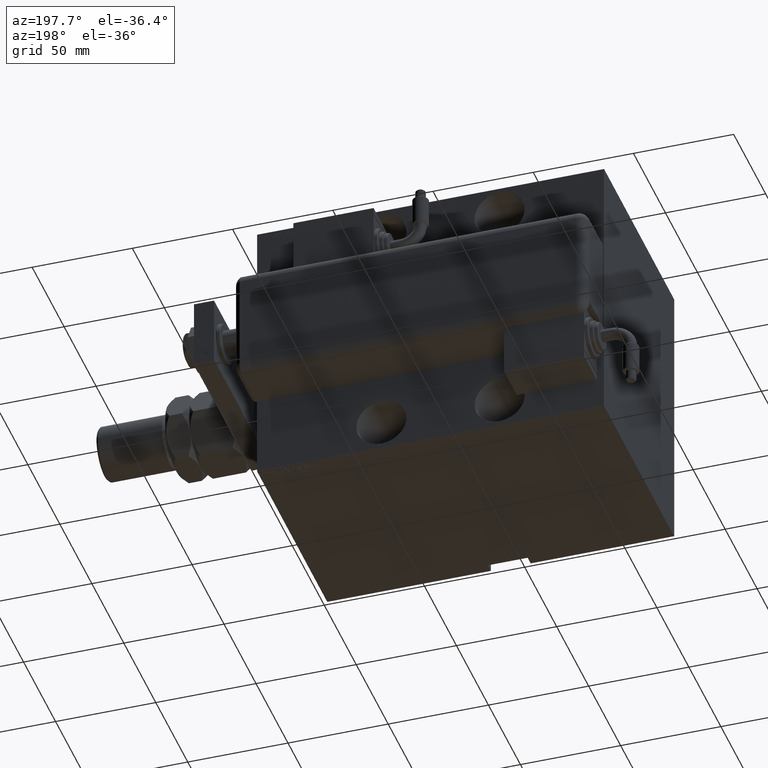
[diagram: clean part render]
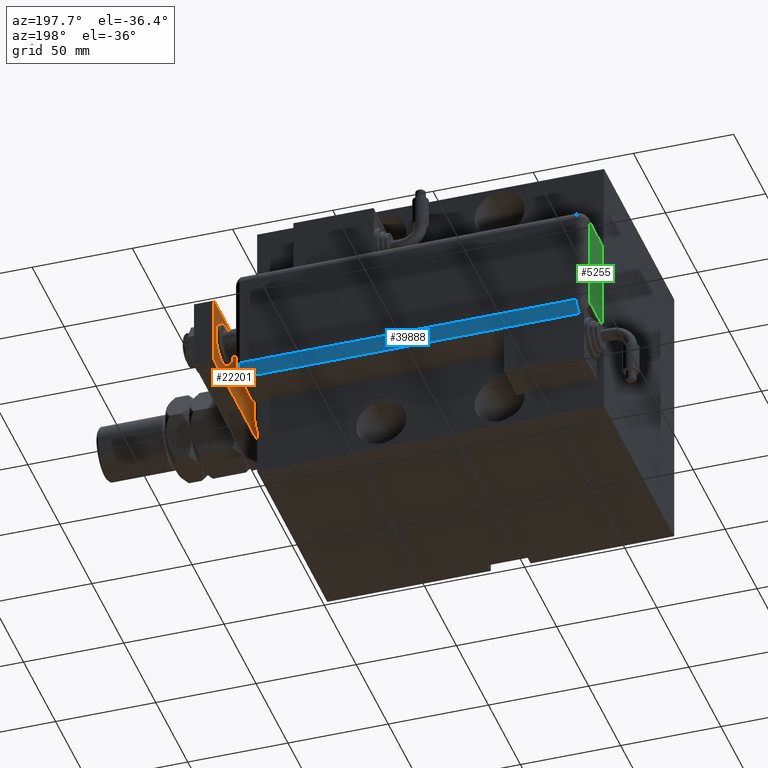
[diagram: same view with three faces highlighted in distinct colors, each labeled with its STEP entity id]
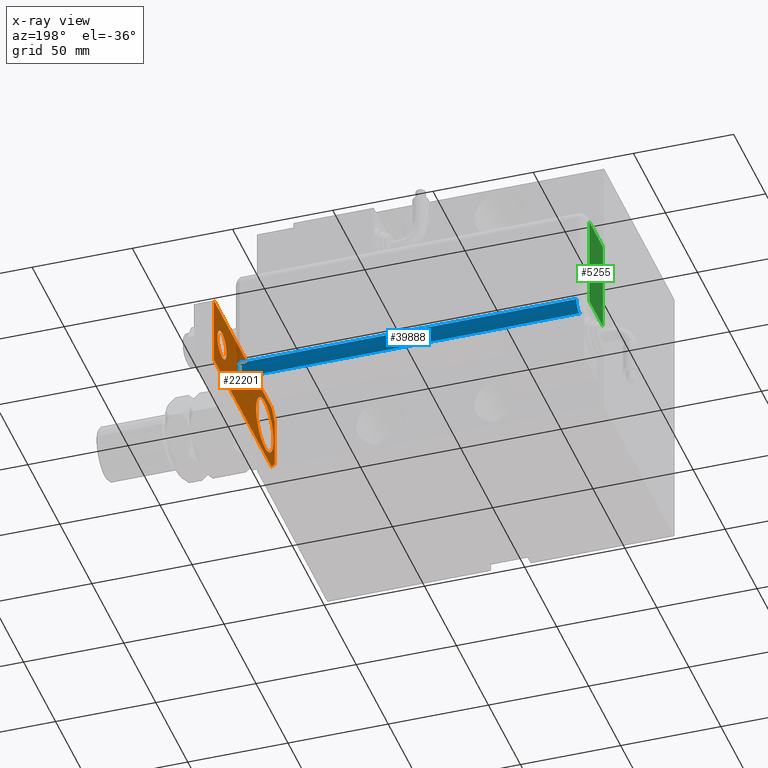
[diagram: x-ray of the same camera — body ghosted, the three highlighted faces saturated]
A machine part, auxiliary view with three faces highlighted in distinct colors.
The next image is the same camera in x-ray (body ghosted, the three faces saturated) — at least one of them is partly hidden behind the body in this view.
Their STEP definitions:

[orange] entity #22201 — the highlighted planar face has unit normal (-1, 0, 0).
#331 = CARTESIAN_POINT ( 'NONE',  ( -17.50000000000000355, 95.00000000000000000, 10.00000000000000000 ) ) ;
#392 = LINE ( 'NONE', #28969, #39743 ) ;
#554 = DIRECTION ( 'NONE',  ( 1.000000000000000000, 0.000000000000000000, 0.000000000000000000 ) ) ;
#656 = DIRECTION ( 'NONE',  ( 1.000000000000000000, 0.000000000000000000, 0.000000000000000000 ) ) ;
#1828 = CIRCLE ( 'NONE', #57028, 13.50000000000000000 ) ;
#2586 = AXIS2_PLACEMENT_3D ( 'NONE', #28294, #47479, #23563 ) ;
#2595 = AXIS2_PLACEMENT_3D ( 'NONE', #34373, #20849, #30588 ) ;
#2844 = EDGE_CURVE ( 'NONE', #3206, #47974, #30158, .T. ) ;
#3206 = VERTEX_POINT ( 'NONE', #43546 ) ;
#3302 = EDGE_LOOP ( 'NONE', ( #39298, #44119, #50104, #53549, #10943, #41584 ) ) ;
#4496 = EDGE_CURVE ( 'NONE', #57265, #6609, #9021, .T. ) ;
#4746 = EDGE_CURVE ( 'NONE', #9118, #19754, #43343, .T. ) ;
#4965 = CARTESIAN_POINT ( 'NONE',  ( -17.50000000000001066, 9.629649721936179265E-32, 10.00000000000000000 ) ) ;
#5163 = VECTOR ( 'NONE', #32081, 1000.000000000000000 ) ;
#6609 = VERTEX_POINT ( 'NONE', #22603 ) ;
#7145 = ORIENTED_EDGE ( 'NONE', *, *, #4746, .F. ) ;
#7498 = VERTEX_POINT ( 'NONE', #61399 ) ;
#8140 = DIRECTION ( 'NONE',  ( 0.7071067811865465735, -0.7071067811865485719, 0.000000000000000000 ) ) ;
#8769 = LINE ( 'NONE', #28229, #9491 ) ;
#9021 = LINE ( 'NONE', #51784, #18222 ) ;
#9118 = VERTEX_POINT ( 'NONE', #57152 ) ;
#9491 = VECTOR ( 'NONE', #8140, 1000.000000000000000 ) ;
#9703 = EDGE_CURVE ( 'NONE', #19754, #9118, #32502, .T. ) ;
#10943 = ORIENTED_EDGE ( 'NONE', *, *, #40805, .T. ) ;
#12282 = CARTESIAN_POINT ( 'NONE',  ( 17.50000000000001066, 9.629649721936179265E-32, 10.00000000000000000 ) ) ;
#12619 = CARTESIAN_POINT ( 'NONE',  ( -13.50000000000000000, 15.50000000000000355, 10.00000000000000000 ) ) ;
#13332 = CARTESIAN_POINT ( 'NONE',  ( 1.963948872468190046E-17, 82.50000000000000000, 10.00000000000000000 ) ) ;
#15198 = PLANE ( 'NONE',  #2595 ) ;
#15796 = CARTESIAN_POINT ( 'NONE',  ( 7.000000000000000000, 82.50000000000000000, 10.00000000000000000 ) ) ;
#16718 = DIRECTION ( 'NONE',  ( 0.000000000000000000, 0.000000000000000000, 1.000000000000000000 ) ) ;
#18222 = VECTOR ( 'NONE', #37003, 1000.000000000000000 ) ;
#18246 = LINE ( 'NONE', #12282, #5163 ) ;
#19489 = DIRECTION ( 'NONE',  ( -7.304098846218135653E-17, -1.000000000000000000, 0.000000000000000000 ) ) ;
#19754 = VERTEX_POINT ( 'NONE', #15796 ) ;
#19914 = FACE_OUTER_BOUND ( 'NONE', #3302, .T. ) ;
#20754 = DIRECTION ( 'NONE',  ( 0.000000000000000000, 0.000000000000000000, 1.000000000000000000 ) ) ;
#20849 = DIRECTION ( 'NONE',  ( -0.000000000000000000, 0.000000000000000000, 1.000000000000000000 ) ) ;
#22201 = ADVANCED_FACE ( 'NONE', ( #24618, #19914, #58280 ), #15198, .T. ) ;
#22603 = CARTESIAN_POINT ( 'NONE',  ( 17.50000000000001066, 5.000000000000003553, 10.00000000000000000 ) ) ;
#22750 = DIRECTION ( 'NONE',  ( 0.000000000000000000, 0.000000000000000000, 1.000000000000000000 ) ) ;
#23366 = EDGE_CURVE ( 'NONE', #7498, #3206, #392, .T. ) ;
#23563 = DIRECTION ( 'NONE',  ( 1.000000000000000000, 0.000000000000000000, 0.000000000000000000 ) ) ;
#24618 = FACE_BOUND ( 'NONE', #62055, .T. ) ;
#24623 = CIRCLE ( 'NONE', #2586, 13.50000000000000000 ) ;
#25865 = ORIENTED_EDGE ( 'NONE', *, *, #55671, .F. ) ;
#26072 = CARTESIAN_POINT ( 'NONE',  ( -17.50000000000001066, 5.000000000000018652, 10.00000000000000000 ) ) ;
#28069 = EDGE_CURVE ( 'NONE', #60752, #57265, #48022, .T. ) ;
#28229 = CARTESIAN_POINT ( 'NONE',  ( -6.250000000000023093, -6.250000000000004441, 10.00000000000000000 ) ) ;
#28294 = CARTESIAN_POINT ( 'NONE',  ( 0.000000000000000000, 15.50000000000000355, 10.00000000000000000 ) ) ;
#28461 = EDGE_CURVE ( 'NONE', #55727, #56529, #1828, .T. ) ;
#28969 = CARTESIAN_POINT ( 'NONE',  ( 17.50000000000000000, 95.00000000000000000, 10.00000000000000000 ) ) ;
#30158 = LINE ( 'NONE', #331, #45273 ) ;
#30588 = DIRECTION ( 'NONE',  ( 1.000000000000000000, 0.000000000000000000, 0.000000000000000000 ) ) ;
#31264 = AXIS2_PLACEMENT_3D ( 'NONE', #34584, #20754, #656 ) ;
#32081 = DIRECTION ( 'NONE',  ( -1.095614826932720348E-16, 1.000000000000000000, 0.000000000000000000 ) ) ;
#32385 = ORIENTED_EDGE ( 'NONE', *, *, #28461, .F. ) ;
#32495 = DIRECTION ( 'NONE',  ( 1.000000000000000000, 0.000000000000000000, 0.000000000000000000 ) ) ;
#32502 = CIRCLE ( 'NONE', #45496, 7.000000000000000000 ) ;
#34305 = CARTESIAN_POINT ( 'NONE',  ( 12.49999999999999289, 9.629649721936179265E-32, 10.00000000000000000 ) ) ;
#34373 = CARTESIAN_POINT ( 'NONE',  ( 0.000000000000000000, 0.000000000000000000, 10.00000000000000000 ) ) ;
#34584 = CARTESIAN_POINT ( 'NONE',  ( 1.963948872468190046E-17, 82.50000000000000000, 10.00000000000000000 ) ) ;
#35487 = CARTESIAN_POINT ( 'NONE',  ( 13.50000000000000000, 15.50000000000000533, 10.00000000000000000 ) ) ;
#37003 = DIRECTION ( 'NONE',  ( 0.7071067811865485719, 0.7071067811865465735, -0.000000000000000000 ) ) ;
#39298 = ORIENTED_EDGE ( 'NONE', *, *, #2844, .T. ) ;
#39743 = VECTOR ( 'NONE', #57605, 1000.000000000000000 ) ;
#40805 = EDGE_CURVE ( 'NONE', #6609, #7498, #18246, .T. ) ;
#41345 = EDGE_LOOP ( 'NONE', ( #25865, #32385 ) ) ;
#41584 = ORIENTED_EDGE ( 'NONE', *, *, #23366, .T. ) ;
#41872 = DIRECTION ( 'NONE',  ( 1.000000000000000000, 0.000000000000000000, 0.000000000000000000 ) ) ;
#43343 = CIRCLE ( 'NONE', #31264, 7.000000000000000000 ) ;
#43546 = CARTESIAN_POINT ( 'NONE',  ( -17.50000000000000355, 95.00000000000000000, 10.00000000000000000 ) ) ;
#44119 = ORIENTED_EDGE ( 'NONE', *, *, #53352, .T. ) ;
#45273 = VECTOR ( 'NONE', #19489, 1000.000000000000000 ) ;
#45496 = AXIS2_PLACEMENT_3D ( 'NONE', #13332, #22750, #32495 ) ;
#47479 = DIRECTION ( 'NONE',  ( 0.000000000000000000, 0.000000000000000000, 1.000000000000000000 ) ) ;
#47974 = VERTEX_POINT ( 'NONE', #26072 ) ;
#48022 = LINE ( 'NONE', #4965, #50961 ) ;
#49512 = ORIENTED_EDGE ( 'NONE', *, *, #9703, .F. ) ;
#50104 = ORIENTED_EDGE ( 'NONE', *, *, #28069, .T. ) ;
#50354 = CARTESIAN_POINT ( 'NONE',  ( 0.000000000000000000, 15.50000000000000355, 10.00000000000000000 ) ) ;
#50961 = VECTOR ( 'NONE', #554, 1000.000000000000000 ) ;
#51784 = CARTESIAN_POINT ( 'NONE',  ( 6.249999999999980460, -6.249999999999997335, 10.00000000000000000 ) ) ;
#53352 = EDGE_CURVE ( 'NONE', #47974, #60752, #8769, .T. ) ;
#53549 = ORIENTED_EDGE ( 'NONE', *, *, #4496, .T. ) ;
#55671 = EDGE_CURVE ( 'NONE', #56529, #55727, #24623, .T. ) ;
#55727 = VERTEX_POINT ( 'NONE', #35487 ) ;
#56529 = VERTEX_POINT ( 'NONE', #12619 ) ;
#57028 = AXIS2_PLACEMENT_3D ( 'NONE', #50354, #16718, #41872 ) ;
#57152 = CARTESIAN_POINT ( 'NONE',  ( -7.000000000000000000, 82.50000000000000000, 10.00000000000000000 ) ) ;
#57265 = VERTEX_POINT ( 'NONE', #34305 ) ;
#57605 = DIRECTION ( 'NONE',  ( -1.000000000000000000, 0.000000000000000000, 0.000000000000000000 ) ) ;
#58280 = FACE_BOUND ( 'NONE', #41345, .T. ) ;
#60752 = VERTEX_POINT ( 'NONE', #61785 ) ;
#61399 = CARTESIAN_POINT ( 'NONE',  ( 17.50000000000000000, 95.00000000000000000, 10.00000000000000000 ) ) ;
#61785 = CARTESIAN_POINT ( 'NONE',  ( -12.50000000000000711, 9.629649721936179265E-32, 10.00000000000000000 ) ) ;
#62055 = EDGE_LOOP ( 'NONE', ( #7145, #49512 ) ) ;

[blue] entity #39888 — the highlighted cylindrical surface (edge-blend (fillet) strip) has radius 5 mm, axis along (-1, -0, -0).
#1328 = CARTESIAN_POINT ( 'NONE',  ( 23.99999999999999289, 20.79999999999998295, 5.000000000000004441 ) ) ;
#1897 = VERTEX_POINT ( 'NONE', #50380 ) ;
#4611 = CIRCLE ( 'NONE', #18653, 5.000000000000000888 ) ;
#4748 = CARTESIAN_POINT ( 'NONE',  ( 28.99599839871871154, 21.00000000000000000, 5.000000000000004441 ) ) ;
#6469 = VERTEX_POINT ( 'NONE', #43092 ) ;
#6618 = ORIENTED_EDGE ( 'NONE', *, *, #15889, .F. ) ;
#7853 = VECTOR ( 'NONE', #57268, 1000.000000000000000 ) ;
#9046 = DIRECTION ( 'NONE',  ( 0.000000000000000000, 0.000000000000000000, -1.000000000000000000 ) ) ;
#9360 = VECTOR ( 'NONE', #46099, 1000.000000000000000 ) ;
#12736 = EDGE_LOOP ( 'NONE', ( #15115, #27347, #58259, #6618, #49038, #54173 ) ) ;
#13592 = LINE ( 'NONE', #56963, #7853 ) ;
#14047 = LINE ( 'NONE', #38236, #47724 ) ;
#14953 = AXIS2_PLACEMENT_3D ( 'NONE', #50343, #17326, #30855 ) ;
#14969 = CARTESIAN_POINT ( 'NONE',  ( 23.99999999999999289, 20.79999999999998295, 173.0000000000000000 ) ) ;
#15115 = ORIENTED_EDGE ( 'NONE', *, *, #23143, .F. ) ;
#15212 = EDGE_CURVE ( 'NONE', #18618, #40708, #14047, .T. ) ;
#15889 = EDGE_CURVE ( 'NONE', #16522, #1897, #13592, .T. ) ;
#16522 = VERTEX_POINT ( 'NONE', #17949 ) ;
#17326 = DIRECTION ( 'NONE',  ( -0.000000000000000000, -0.000000000000000000, 1.000000000000000000 ) ) ;
#17949 = CARTESIAN_POINT ( 'NONE',  ( 23.99999999999999289, 25.79999999999998295, 173.0000000000000000 ) ) ;
#18449 = DIRECTION ( 'NONE',  ( -0.000000000000000000, -0.000000000000000000, 1.000000000000000000 ) ) ;
#18618 = VERTEX_POINT ( 'NONE', #4748 ) ;
#18653 = AXIS2_PLACEMENT_3D ( 'NONE', #49480, #41285, #21792 ) ;
#18766 = DIRECTION ( 'NONE',  ( -1.000000000000000000, 0.000000000000000000, 0.000000000000000000 ) ) ;
#20485 = DIRECTION ( 'NONE',  ( -0.000000000000000000, -0.000000000000000000, 1.000000000000000000 ) ) ;
#21792 = DIRECTION ( 'NONE',  ( 1.000000000000000000, -6.383782391594648845E-14, 0.000000000000000000 ) ) ;
#22865 = AXIS2_PLACEMENT_3D ( 'NONE', #1328, #20485, #58853 ) ;
#23143 = EDGE_CURVE ( 'NONE', #40708, #54251, #4611, .T. ) ;
#23999 = CIRCLE ( 'NONE', #14953, 5.000000000000000888 ) ;
#26906 = LINE ( 'NONE', #56491, #9360 ) ;
#27347 = ORIENTED_EDGE ( 'NONE', *, *, #15212, .F. ) ;
#27482 = EDGE_CURVE ( 'NONE', #18618, #1897, #28862, .T. ) ;
#28862 = CIRCLE ( 'NONE', #22865, 5.000000000000000888 ) ;
#30855 = DIRECTION ( 'NONE',  ( -1.000000000000000000, 0.000000000000000000, 0.000000000000000000 ) ) ;
#33421 = CARTESIAN_POINT ( 'NONE',  ( 28.99999999999999645, 20.79999999999998295, 43.00000000000000000 ) ) ;
#35562 = EDGE_CURVE ( 'NONE', #6469, #16522, #23999, .T. ) ;
#38236 = CARTESIAN_POINT ( 'NONE',  ( 28.99599839871871154, 20.99999999999997513, 173.0000000000000000 ) ) ;
#39238 = AXIS2_PLACEMENT_3D ( 'NONE', #14969, #9046, #18766 ) ;
#39888 = ADVANCED_FACE ( 'NONE', ( #48592 ), #61855, .T. ) ;
#40708 = VERTEX_POINT ( 'NONE', #61331 ) ;
#41285 = DIRECTION ( 'NONE',  ( -0.000000000000000000, 0.000000000000000000, -1.000000000000000000 ) ) ;
#43092 = CARTESIAN_POINT ( 'NONE',  ( 28.99999999999999645, 20.79999999999998295, 173.0000000000000000 ) ) ;
#46099 = DIRECTION ( 'NONE',  ( -0.000000000000000000, -0.000000000000000000, 1.000000000000000000 ) ) ;
#47724 = VECTOR ( 'NONE', #18449, 1000.000000000000000 ) ;
#48592 = FACE_OUTER_BOUND ( 'NONE', #12736, .T. ) ;
#49038 = ORIENTED_EDGE ( 'NONE', *, *, #35562, .F. ) ;
#49480 = CARTESIAN_POINT ( 'NONE',  ( 23.99999999999999289, 20.79999999999998295, 42.99999999999998579 ) ) ;
#50343 = CARTESIAN_POINT ( 'NONE',  ( 23.99999999999999289, 20.79999999999998295, 173.0000000000000000 ) ) ;
#50380 = CARTESIAN_POINT ( 'NONE',  ( 23.99999999999999289, 25.79999999999998295, 5.000000000000004441 ) ) ;
#50580 = EDGE_CURVE ( 'NONE', #54251, #6469, #26906, .T. ) ;
#54173 = ORIENTED_EDGE ( 'NONE', *, *, #50580, .F. ) ;
#54251 = VERTEX_POINT ( 'NONE', #33421 ) ;
#56491 = CARTESIAN_POINT ( 'NONE',  ( 28.99999999999999645, 20.79999999999998295, 173.0000000000000000 ) ) ;
#56963 = CARTESIAN_POINT ( 'NONE',  ( 23.99999999999999289, 25.79999999999998295, 173.0000000000000000 ) ) ;
#57268 = DIRECTION ( 'NONE',  ( 0.000000000000000000, 0.000000000000000000, -1.000000000000000000 ) ) ;
#58259 = ORIENTED_EDGE ( 'NONE', *, *, #27482, .T. ) ;
#58853 = DIRECTION ( 'NONE',  ( -1.000000000000000000, 0.000000000000000000, 0.000000000000000000 ) ) ;
#61331 = CARTESIAN_POINT ( 'NONE',  ( 28.99599839871871154, 20.99999999999999289, 43.00000000000000000 ) ) ;
#61855 = CYLINDRICAL_SURFACE ( 'NONE', #39238, 5.000000000000000888 ) ;

[green] entity #5255 — the highlighted planar face has unit normal (-1, -0, -0).
#1199 = CARTESIAN_POINT ( 'NONE',  ( -23.99999999999999289, 1.007682896475360021E-13, 0.000000000000000000 ) ) ;
#4118 = CARTESIAN_POINT ( 'NONE',  ( 23.00000000000000000, 0.000000000000000000, 0.000000000000000000 ) ) ;
#4311 = VERTEX_POINT ( 'NONE', #1199 ) ;
#4641 = VECTOR ( 'NONE', #47473, 1000.000000000000000 ) ;
#4719 = LINE ( 'NONE', #4118, #37052 ) ;
#5255 = ADVANCED_FACE ( 'NONE', ( #44386 ), #5417, .T. ) ;
#5417 = PLANE ( 'NONE',  #57441 ) ;
#9130 = CARTESIAN_POINT ( 'NONE',  ( 23.99999999999999289, 20.79999999999998295, 0.000000000000000000 ) ) ;
#12194 = LINE ( 'NONE', #21010, #37557 ) ;
#12530 = CARTESIAN_POINT ( 'NONE',  ( 28.99999999999999645, -9.421223957302265857E-15, 0.000000000000000000 ) ) ;
#14239 = CARTESIAN_POINT ( 'NONE',  ( 0.000000000000000000, 0.000000000000000000, 0.000000000000000000 ) ) ;
#16821 = EDGE_CURVE ( 'NONE', #4311, #33590, #55616, .T. ) ;
#19863 = DIRECTION ( 'NONE',  ( -1.000000000000000000, 0.000000000000000000, -0.000000000000000000 ) ) ;
#21010 = CARTESIAN_POINT ( 'NONE',  ( -23.99999999999999645, 20.79999999999998295, 0.000000000000000000 ) ) ;
#21337 = VERTEX_POINT ( 'NONE', #48897 ) ;
#23440 = VERTEX_POINT ( 'NONE', #34009 ) ;
#23878 = DIRECTION ( 'NONE',  ( 0.000000000000000000, 1.000000000000000000, 0.000000000000000000 ) ) ;
#24227 = ORIENTED_EDGE ( 'NONE', *, *, #57544, .T. ) ;
#25867 = CARTESIAN_POINT ( 'NONE',  ( 23.00000000000000000, 0.000000000000000000, 0.000000000000000000 ) ) ;
#31032 = ORIENTED_EDGE ( 'NONE', *, *, #34748, .F. ) ;
#32339 = DIRECTION ( 'NONE',  ( 1.000000000000000000, -2.079047426506382950E-15, -0.000000000000000000 ) ) ;
#33590 = VERTEX_POINT ( 'NONE', #25867 ) ;
#34009 = CARTESIAN_POINT ( 'NONE',  ( -23.99999999999999645, 20.79999999999998295, 0.000000000000000000 ) ) ;
#34208 = EDGE_LOOP ( 'NONE', ( #24227, #31032, #53111, #42358 ) ) ;
#34748 = EDGE_CURVE ( 'NONE', #33590, #21337, #4719, .T. ) ;
#37052 = VECTOR ( 'NONE', #23878, 1000.000000000000000 ) ;
#37557 = VECTOR ( 'NONE', #59375, 1000.000000000000000 ) ;
#42358 = ORIENTED_EDGE ( 'NONE', *, *, #51161, .T. ) ;
#43769 = DIRECTION ( 'NONE',  ( 0.000000000000000000, 0.000000000000000000, -1.000000000000000000 ) ) ;
#44386 = FACE_OUTER_BOUND ( 'NONE', #34208, .T. ) ;
#47473 = DIRECTION ( 'NONE',  ( 1.000000000000000000, -0.000000000000000000, -0.000000000000000000 ) ) ;
#48897 = CARTESIAN_POINT ( 'NONE',  ( 23.00000000000000000, 20.79999999999998295, 1.734723475976807094E-15 ) ) ;
#51161 = EDGE_CURVE ( 'NONE', #4311, #23440, #12194, .T. ) ;
#53111 = ORIENTED_EDGE ( 'NONE', *, *, #16821, .F. ) ;
#54100 = VECTOR ( 'NONE', #32339, 1000.000000000000000 ) ;
#55616 = LINE ( 'NONE', #12530, #54100 ) ;
#57441 = AXIS2_PLACEMENT_3D ( 'NONE', #14239, #43769, #19863 ) ;
#57544 = EDGE_CURVE ( 'NONE', #23440, #21337, #61640, .T. ) ;
#59375 = DIRECTION ( 'NONE',  ( -0.000000000000000000, 1.000000000000000000, -0.000000000000000000 ) ) ;
#61640 = LINE ( 'NONE', #9130, #4641 ) ;